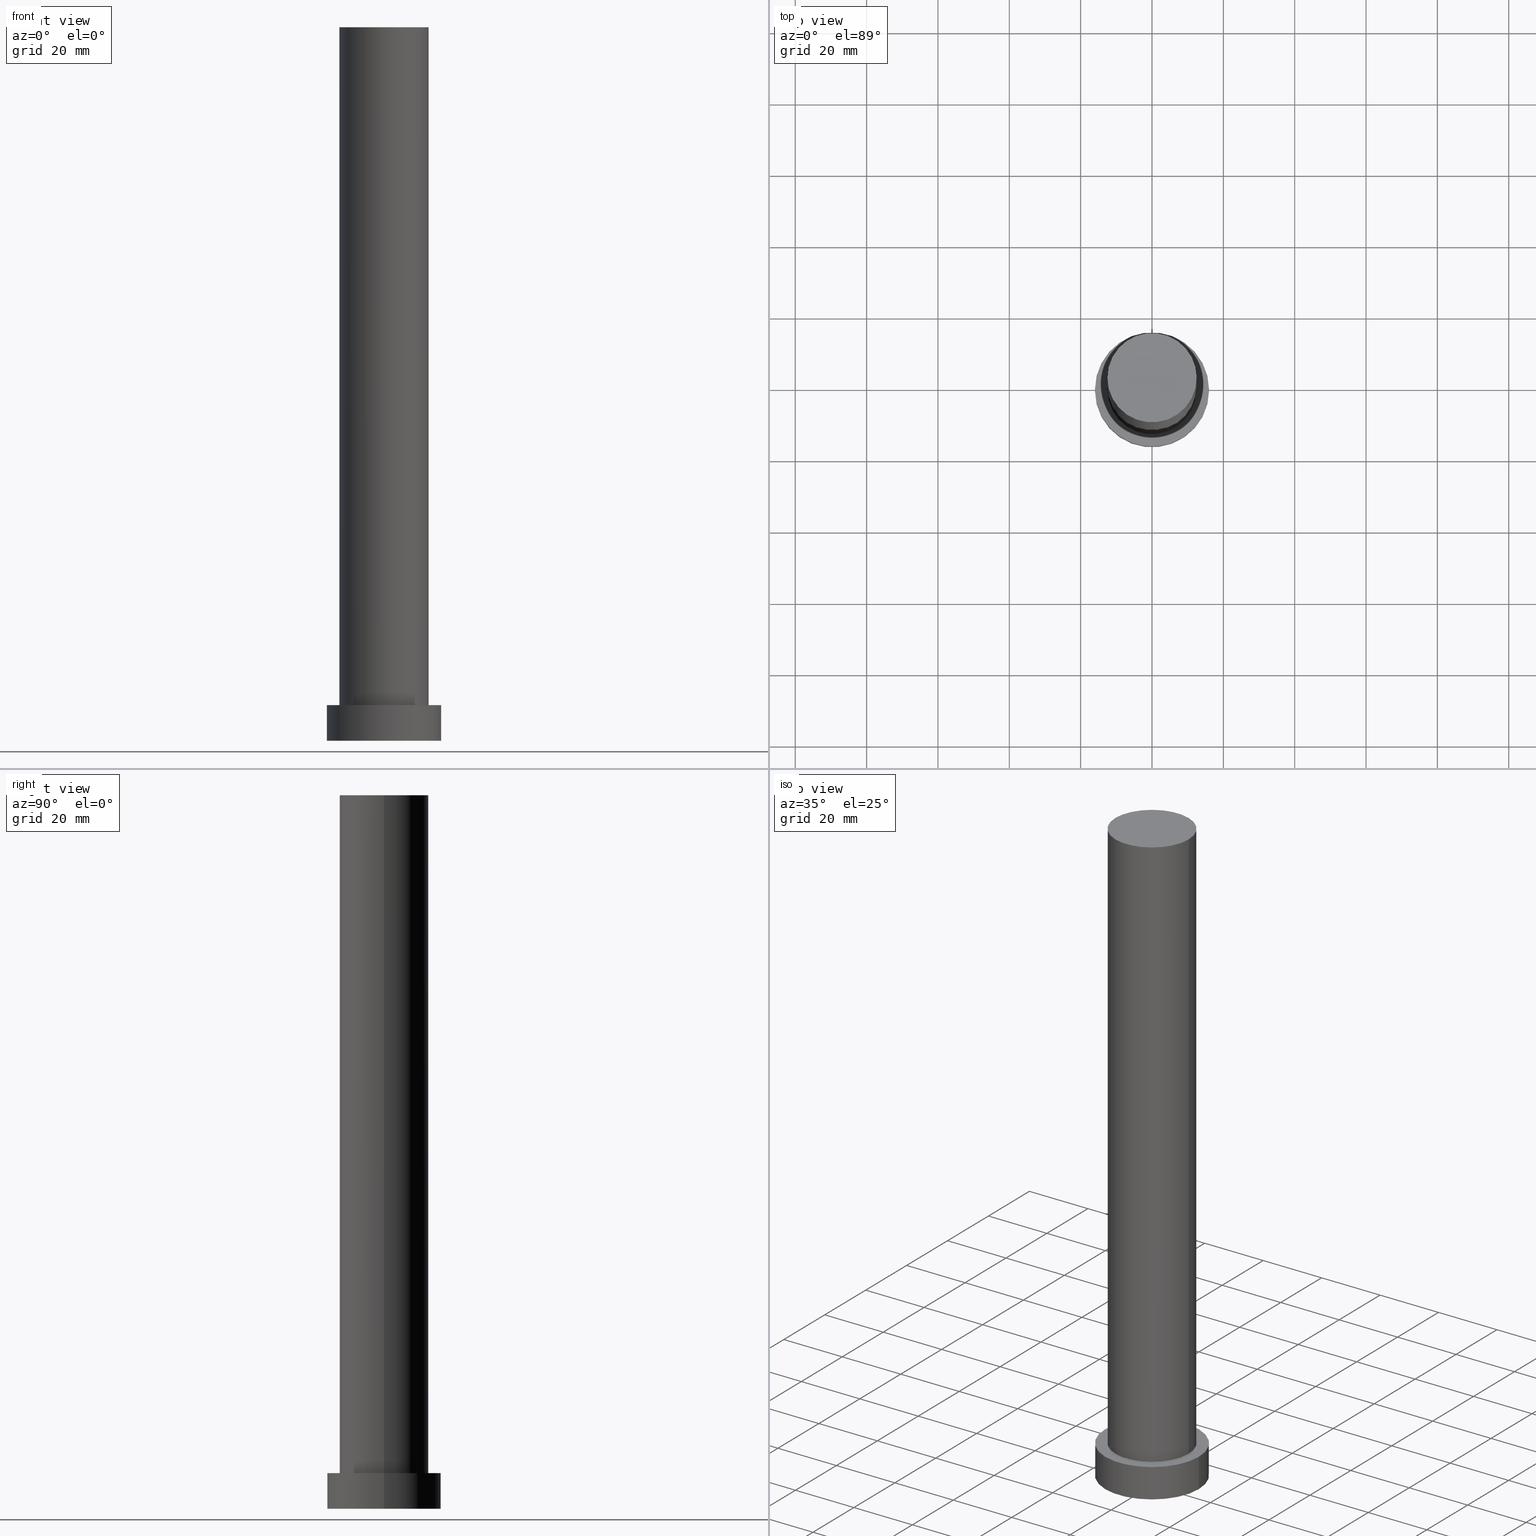
[diagram: canonical four-view strip — front | top / right | iso, engineering-drawing reading convention]
A machine part, canonical four-view strip (front | top / right | iso — engineering-drawing reading convention). The complete STEP part file that produces these views, byte-faithful:
ISO-10303-21;
HEADER;
FILE_DESCRIPTION (( 'STEP AP203' ),
    '1' );
FILE_NAME ('477f.STEP',
    '2023-02-13T07:52:15',
    ( '' ),
    ( '' ),
    'SwSTEP 2.0',
    'SolidWorks 2019',
    '' );
FILE_SCHEMA (( 'CONFIG_CONTROL_DESIGN' ));
ENDSEC;

DATA;
#1 = PERSON_AND_ORGANIZATION ( #253, #13 ) ;
#2 = DIRECTION ( 'NONE',  ( -1.000000000000000000, 0.000000000000000000, 0.000000000000000000 ) ) ;
#3 = APPROVAL_ROLE ( '' ) ;
#4 = DIRECTION ( 'NONE',  ( -0.000000000000000000, -0.000000000000000000, -1.000000000000000000 ) ) ;
#5 = PERSON_AND_ORGANIZATION_ROLE ( 'creator' ) ;
#6 = ORIENTED_EDGE ( 'NONE', *, *, #17, .T. ) ;
#7 = PERSON_AND_ORGANIZATION_ROLE ( 'design_supplier' ) ;
#8 = CARTESIAN_POINT ( 'NONE',  ( 0.000000000000000000, 0.000000000000000000, 10.00000000000000000 ) ) ;
#9 = CYLINDRICAL_SURFACE ( 'NONE', #255, 16.00000000000000000 ) ;
#10 = PRODUCT_DEFINITION_FORMATION_WITH_SPECIFIED_SOURCE ( 'LIBOVOLN�', '', #134, .NOT_KNOWN. ) ;
#11 = CARTESIAN_POINT ( 'NONE',  ( 12.50000000000000000, 1.530808498934191521E-15, 200.0000000000000000 ) ) ;
#12 = CIRCLE ( 'NONE', #185, 12.50000000000000000 ) ;
#13 = ORGANIZATION ( 'NEUR�EN�', 'NEUR�EN�', '' ) ;
#14 = UNCERTAINTY_MEASURE_WITH_UNIT (LENGTH_MEASURE( 1.000000000000000082E-05 ), #113, 'distance_accuracy_value', 'NONE');
#15 = EDGE_CURVE ( 'NONE', #167, #133, #119, .T. ) ;
#16 = APPROVAL_DATE_TIME ( #34, #140 ) ;
#17 = EDGE_CURVE ( 'NONE', #64, #164, #74, .T. ) ;
#18 = DIRECTION ( 'NONE',  ( 0.000000000000000000, 0.000000000000000000, 1.000000000000000000 ) ) ;
#19 = CARTESIAN_POINT ( 'NONE',  ( 16.00000000000000000, 1.959434878635765131E-15, 0.000000000000000000 ) ) ;
#20 = ORIENTED_EDGE ( 'NONE', *, *, #17, .F. ) ;
#21 =( NAMED_UNIT ( * ) SI_UNIT ( $, .STERADIAN. ) SOLID_ANGLE_UNIT ( ) );
#22 = ORIENTED_EDGE ( 'NONE', *, *, #83, .F. ) ;
#23 = AXIS2_PLACEMENT_3D ( 'NONE', #44, #115, #247 ) ;
#24 = FACE_OUTER_BOUND ( 'NONE', #27, .T. ) ;
#25 = DIRECTION ( 'NONE',  ( 0.000000000000000000, 0.000000000000000000, 1.000000000000000000 ) ) ;
#26 = DATE_AND_TIME ( #226, #39 ) ;
#27 = EDGE_LOOP ( 'NONE', ( #179, #35, #6, #107 ) ) ;
#28 = PLANE ( 'NONE',  #69 ) ;
#29 = PERSON_AND_ORGANIZATION_ROLE ( 'classification_officer' ) ;
#30 = EDGE_CURVE ( 'NONE', #123, #64, #12, .T. ) ;
#31 = SHAPE_DEFINITION_REPRESENTATION ( #77, #231 ) ;
#32 = DATE_TIME_ROLE ( 'creation_date' ) ;
#33 = COORDINATED_UNIVERSAL_TIME_OFFSET ( 1, 0, .AHEAD. ) ;
#34 = DATE_AND_TIME ( #143, #218 ) ;
#35 = ORIENTED_EDGE ( 'NONE', *, *, #142, .F. ) ;
#36 = DATE_TIME_ROLE ( 'classification_date' ) ;
#37 = CARTESIAN_POINT ( 'NONE',  ( 0.000000000000000000, 0.000000000000000000, 10.00000000000000000 ) ) ;
#38 = CIRCLE ( 'NONE', #51, 12.50000000000000000 ) ;
#39 = LOCAL_TIME ( 8, 52, 15.00000000000000000, #230 ) ;
#40 = EDGE_LOOP ( 'NONE', ( #205, #153, #92, #129 ) ) ;
#41 = ADVANCED_FACE ( 'NONE', ( #112, #201 ), #28, .T. ) ;
#42 = CARTESIAN_POINT ( 'NONE',  ( 0.000000000000000000, 0.000000000000000000, 10.00000000000000000 ) ) ;
#43 = ORIENTED_EDGE ( 'NONE', *, *, #15, .F. ) ;
#44 = CARTESIAN_POINT ( 'NONE',  ( 0.000000000000000000, 0.000000000000000000, 200.0000000000000000 ) ) ;
#45 = DIRECTION ( 'NONE',  ( -0.000000000000000000, -0.000000000000000000, -1.000000000000000000 ) ) ;
#46 = AXIS2_PLACEMENT_3D ( 'NONE', #42, #18, #149 ) ;
#47 = DIRECTION ( 'NONE',  ( -0.000000000000000000, -0.000000000000000000, -1.000000000000000000 ) ) ;
#48 = DIRECTION ( 'NONE',  ( -1.000000000000000000, 0.000000000000000000, 0.000000000000000000 ) ) ;
#49 = CC_DESIGN_PERSON_AND_ORGANIZATION_ASSIGNMENT ( #180, #7, ( #10 ) ) ;
#50 = CARTESIAN_POINT ( 'NONE',  ( 0.000000000000000000, 0.000000000000000000, 200.0000000000000000 ) ) ;
#51 = AXIS2_PLACEMENT_3D ( 'NONE', #8, #101, #182 ) ;
#52 = CARTESIAN_POINT ( 'NONE',  ( 0.000000000000000000, 0.000000000000000000, 200.0000000000000000 ) ) ;
#53 = APPROVAL_PERSON_ORGANIZATION ( #217, #140, #212 ) ;
#54 = DATE_AND_TIME ( #127, #233 ) ;
#55 = COORDINATED_UNIVERSAL_TIME_OFFSET ( 1, 0, .AHEAD. ) ;
#56 = AXIS2_PLACEMENT_3D ( 'NONE', #227, #199, #136 ) ;
#57 = ADVANCED_FACE ( 'NONE', ( #138 ), #9, .T. ) ;
#58 = CARTESIAN_POINT ( 'NONE',  ( 16.00000000000000000, 1.959434878635765131E-15, 10.00000000000000000 ) ) ;
#59 = DIRECTION ( 'NONE',  ( 1.000000000000000000, 0.000000000000000000, 0.000000000000000000 ) ) ;
#60 = MECHANICAL_CONTEXT ( 'NONE', #203, 'mechanical' ) ;
#61 = CARTESIAN_POINT ( 'NONE',  ( 0.000000000000000000, 0.000000000000000000, 10.00000000000000000 ) ) ;
#62 = ORIENTED_EDGE ( 'NONE', *, *, #191, .F. ) ;
#63 = DIRECTION ( 'NONE',  ( 0.000000000000000000, 0.000000000000000000, 1.000000000000000000 ) ) ;
#64 = VERTEX_POINT ( 'NONE', #238 ) ;
#65 = CARTESIAN_POINT ( 'NONE',  ( -16.00000000000000000, 0.000000000000000000, 10.00000000000000000 ) ) ;
#66 = AXIS2_PLACEMENT_3D ( 'NONE', #195, #204, #168 ) ;
#67 = DATE_AND_TIME ( #210, #96 ) ;
#68 = AXIS2_PLACEMENT_3D ( 'NONE', #155, #71, #90 ) ;
#69 = AXIS2_PLACEMENT_3D ( 'NONE', #100, #25, #98 ) ;
#70 = AXIS2_PLACEMENT_3D ( 'NONE', #172, #4, #2 ) ;
#71 = DIRECTION ( 'NONE',  ( 0.000000000000000000, 0.000000000000000000, 1.000000000000000000 ) ) ;
#72 = FACE_OUTER_BOUND ( 'NONE', #171, .T. ) ;
#73 = MANIFOLD_SOLID_BREP ( 'P�idat vysunut�m3', #159 ) ;
#74 = LINE ( 'NONE', #156, #81 ) ;
#75 = PLANE ( 'NONE',  #23 ) ;
#76 = CARTESIAN_POINT ( 'NONE',  ( 0.000000000000000000, 0.000000000000000000, 0.000000000000000000 ) ) ;
#77 = PRODUCT_DEFINITION_SHAPE ( 'NONE', 'NONE',  #251 ) ;
#78 = ORIENTED_EDGE ( 'NONE', *, *, #191, .T. ) ;
#79 = APPROVAL_PERSON_ORGANIZATION ( #1, #202, #3 ) ;
#80 = CYLINDRICAL_SURFACE ( 'NONE', #70, 12.50000000000000000 ) ;
#81 = VECTOR ( 'NONE', #45, 1000.000000000000000 ) ;
#82 = AXIS2_PLACEMENT_3D ( 'NONE', #76, #173, #59 ) ;
#83 = EDGE_CURVE ( 'NONE', #164, #145, #105, .T. ) ;
#84 = CIRCLE ( 'NONE', #141, 16.00000000000000000 ) ;
#85 = ORIENTED_EDGE ( 'NONE', *, *, #154, .T. ) ;
#86 = EDGE_LOOP ( 'NONE', ( #222, #214 ) ) ;
#87 = DIRECTION ( 'NONE',  ( -0.000000000000000000, -0.000000000000000000, -1.000000000000000000 ) ) ;
#88 = AXIS2_PLACEMENT_3D ( 'NONE', #37, #47, #237 ) ;
#89 = PLANE ( 'NONE',  #207 ) ;
#90 = DIRECTION ( 'NONE',  ( 1.000000000000000000, 0.000000000000000000, 0.000000000000000000 ) ) ;
#91 = PERSON_AND_ORGANIZATION_ROLE ( 'design_owner' ) ;
#92 = ORIENTED_EDGE ( 'NONE', *, *, #236, .T. ) ;
#93 = APPLICATION_PROTOCOL_DEFINITION ( 'international standard', 'config_control_design', 1994, #203 ) ;
#94 = ORIENTED_EDGE ( 'NONE', *, *, #170, .F. ) ;
#95 = CARTESIAN_POINT ( 'NONE',  ( 16.00000000000000000, 1.959434878635765131E-15, 10.00000000000000000 ) ) ;
#96 = LOCAL_TIME ( 8, 52, 15.00000000000000000, #188 ) ;
#97 = CYLINDRICAL_SURFACE ( 'NONE', #88, 16.00000000000000000 ) ;
#98 = DIRECTION ( 'NONE',  ( 1.000000000000000000, 0.000000000000000000, -0.000000000000000000 ) ) ;
#99 = EDGE_CURVE ( 'NONE', #114, #167, #110, .T. ) ;
#100 = CARTESIAN_POINT ( 'NONE',  ( 0.000000000000000000, 0.000000000000000000, 10.00000000000000000 ) ) ;
#101 = DIRECTION ( 'NONE',  ( 0.000000000000000000, 0.000000000000000000, 1.000000000000000000 ) ) ;
#102 = ADVANCED_FACE ( 'NONE', ( #165 ), #89, .F. ) ;
#103 = CALENDAR_DATE ( 2023, 13, 2 ) ;
#104 = CC_DESIGN_DATE_AND_TIME_ASSIGNMENT ( #54, #32, ( #251 ) ) ;
#105 = CIRCLE ( 'NONE', #240, 12.50000000000000000 ) ;
#106 = APPROVAL_STATUS ( 'not_yet_approved' ) ;
#107 = ORIENTED_EDGE ( 'NONE', *, *, #83, .T. ) ;
#108 = APPLICATION_CONTEXT ( 'configuration controlled 3d designs of mechanical parts and assemblies' ) ;
#109 = EDGE_CURVE ( 'NONE', #123, #145, #245, .T. ) ;
#110 = LINE ( 'NONE', #58, #249 ) ;
#111 = CARTESIAN_POINT ( 'NONE',  ( -16.00000000000000000, 0.000000000000000000, 10.00000000000000000 ) ) ;
#112 = FACE_BOUND ( 'NONE', #174, .T. ) ;
#113 =( LENGTH_UNIT ( ) NAMED_UNIT ( * ) SI_UNIT ( .MILLI., .METRE. ) );
#114 = VERTEX_POINT ( 'NONE', #95 ) ;
#115 = DIRECTION ( 'NONE',  ( 0.000000000000000000, 0.000000000000000000, 1.000000000000000000 ) ) ;
#116 = CARTESIAN_POINT ( 'NONE',  ( -12.50000000000000000, 0.000000000000000000, 10.00000000000000000 ) ) ;
#117 = EDGE_CURVE ( 'NONE', #145, #164, #38, .T. ) ;
#118 = DIRECTION ( 'NONE',  ( 1.000000000000000000, 0.000000000000000000, 0.000000000000000000 ) ) ;
#119 = CIRCLE ( 'NONE', #56, 16.00000000000000000 ) ;
#120 = DIRECTION ( 'NONE',  ( 1.000000000000000000, 0.000000000000000000, -0.000000000000000000 ) ) ;
#121 = CIRCLE ( 'NONE', #68, 16.00000000000000000 ) ;
#122 = AXIS2_PLACEMENT_3D ( 'NONE', #52, #125, #160 ) ;
#123 = VERTEX_POINT ( 'NONE', #11 ) ;
#124 = SECURITY_CLASSIFICATION ( '', '', #158 ) ;
#125 = DIRECTION ( 'NONE',  ( 0.000000000000000000, 0.000000000000000000, 1.000000000000000000 ) ) ;
#126 = PERSON_AND_ORGANIZATION ( #253, #13 ) ;
#127 = CALENDAR_DATE ( 2023, 13, 2 ) ;
#128 = ADVANCED_FACE ( 'NONE', ( #72 ), #80, .T. ) ;
#129 = ORIENTED_EDGE ( 'NONE', *, *, #170, .T. ) ;
#130 =( NAMED_UNIT ( * ) PLANE_ANGLE_UNIT ( ) SI_UNIT ( $, .RADIAN. ) );
#131 = DIRECTION ( 'NONE',  ( 0.000000000000000000, 0.000000000000000000, 1.000000000000000000 ) ) ;
#132 = APPLICATION_PROTOCOL_DEFINITION ( 'international standard', 'config_control_design', 1994, #108 ) ;
#133 = VERTEX_POINT ( 'NONE', #242 ) ;
#134 = PRODUCT ( '477f', '477f', '', ( #60 ) ) ;
#135 = CARTESIAN_POINT ( 'NONE',  ( 0.000000000000000000, 0.000000000000000000, 0.000000000000000000 ) ) ;
#136 = DIRECTION ( 'NONE',  ( 1.000000000000000000, 0.000000000000000000, 0.000000000000000000 ) ) ;
#137 = DIRECTION ( 'NONE',  ( -0.000000000000000000, -0.000000000000000000, -1.000000000000000000 ) ) ;
#138 = FACE_OUTER_BOUND ( 'NONE', #40, .T. ) ;
#139 = ADVANCED_FACE ( 'NONE', ( #175 ), #75, .T. ) ;
#140 = APPROVAL ( #163, 'NEUR�EN�' ) ;
#141 = AXIS2_PLACEMENT_3D ( 'NONE', #135, #200, #221 ) ;
#142 = EDGE_CURVE ( 'NONE', #64, #123, #235, .T. ) ;
#143 = CALENDAR_DATE ( 2023, 13, 2 ) ;
#144 = CIRCLE ( 'NONE', #46, 16.00000000000000000 ) ;
#145 = VERTEX_POINT ( 'NONE', #209 ) ;
#146 = CC_DESIGN_PERSON_AND_ORGANIZATION_ASSIGNMENT ( #228, #29, ( #124 ) ) ;
#147 = CC_DESIGN_PERSON_AND_ORGANIZATION_ASSIGNMENT ( #184, #5, ( #251 ) ) ;
#148 = VERTEX_POINT ( 'NONE', #111 ) ;
#149 = DIRECTION ( 'NONE',  ( 1.000000000000000000, 0.000000000000000000, 0.000000000000000000 ) ) ;
#150 = DIRECTION ( 'NONE',  ( -0.000000000000000000, -0.000000000000000000, -1.000000000000000000 ) ) ;
#151 = PERSON_AND_ORGANIZATION_ROLE ( 'creator' ) ;
#152 = APPROVAL_STATUS ( 'not_yet_approved' ) ;
#153 = ORIENTED_EDGE ( 'NONE', *, *, #154, .F. ) ;
#154 = EDGE_CURVE ( 'NONE', #148, #114, #121, .T. ) ;
#155 = CARTESIAN_POINT ( 'NONE',  ( 0.000000000000000000, 0.000000000000000000, 10.00000000000000000 ) ) ;
#156 = CARTESIAN_POINT ( 'NONE',  ( -12.50000000000000000, 0.000000000000000000, 200.0000000000000000 ) ) ;
#157 = ORIENTED_EDGE ( 'NONE', *, *, #117, .F. ) ;
#158 = SECURITY_CLASSIFICATION_LEVEL ( 'unclassified' ) ;
#159 = CLOSED_SHELL ( 'NONE', ( #128, #161, #57, #41, #102, #187, #139 ) ) ;
#160 = DIRECTION ( 'NONE',  ( 1.000000000000000000, 0.000000000000000000, 0.000000000000000000 ) ) ;
#161 = ADVANCED_FACE ( 'NONE', ( #243 ), #97, .T. ) ;
#162 = LOCAL_TIME ( 8, 52, 15.00000000000000000, #33 ) ;
#163 = APPROVAL_STATUS ( 'not_yet_approved' ) ;
#164 = VERTEX_POINT ( 'NONE', #116 ) ;
#165 = FACE_OUTER_BOUND ( 'NONE', #189, .T. ) ;
#166 = VECTOR ( 'NONE', #229, 1000.000000000000000 ) ;
#167 = VERTEX_POINT ( 'NONE', #19 ) ;
#168 = DIRECTION ( 'NONE',  ( -1.000000000000000000, 0.000000000000000000, 0.000000000000000000 ) ) ;
#169 = DIRECTION ( 'NONE',  ( 1.000000000000000000, 0.000000000000000000, 0.000000000000000000 ) ) ;
#170 = EDGE_CURVE ( 'NONE', #133, #167, #84, .T. ) ;
#171 = EDGE_LOOP ( 'NONE', ( #197, #241, #220, #20 ) ) ;
#172 = CARTESIAN_POINT ( 'NONE',  ( 0.000000000000000000, 0.000000000000000000, 200.0000000000000000 ) ) ;
#173 = DIRECTION ( 'NONE',  ( 0.000000000000000000, 0.000000000000000000, 1.000000000000000000 ) ) ;
#174 = EDGE_LOOP ( 'NONE', ( #22, #157 ) ) ;
#175 = FACE_OUTER_BOUND ( 'NONE', #86, .T. ) ;
#176 = CYLINDRICAL_SURFACE ( 'NONE', #66, 12.50000000000000000 ) ;
#177 = ORIENTED_EDGE ( 'NONE', *, *, #15, .T. ) ;
#178 = CC_DESIGN_PERSON_AND_ORGANIZATION_ASSIGNMENT ( #254, #151, ( #10 ) ) ;
#179 = ORIENTED_EDGE ( 'NONE', *, *, #109, .F. ) ;
#180 = PERSON_AND_ORGANIZATION ( #253, #13 ) ;
#181 = CC_DESIGN_APPROVAL ( #140, ( #124 ) ) ;
#182 = DIRECTION ( 'NONE',  ( 1.000000000000000000, 0.000000000000000000, 0.000000000000000000 ) ) ;
#183 = APPROVAL_PERSON_ORGANIZATION ( #126, #232, #213 ) ;
#184 = PERSON_AND_ORGANIZATION ( #253, #13 ) ;
#185 = AXIS2_PLACEMENT_3D ( 'NONE', #50, #206, #118 ) ;
#186 = DESIGN_CONTEXT ( 'detailed design', #108, 'design' ) ;
#187 = ADVANCED_FACE ( 'NONE', ( #24 ), #176, .T. ) ;
#188 = COORDINATED_UNIVERSAL_TIME_OFFSET ( 1, 0, .AHEAD. ) ;
#189 = EDGE_LOOP ( 'NONE', ( #94, #43 ) ) ;
#190 = ORIENTED_EDGE ( 'NONE', *, *, #99, .T. ) ;
#191 = EDGE_CURVE ( 'NONE', #114, #148, #144, .T. ) ;
#192 = EDGE_LOOP ( 'NONE', ( #85, #78 ) ) ;
#193 = APPROVAL_DATE_TIME ( #216, #232 ) ;
#194 = PRODUCT_RELATED_PRODUCT_CATEGORY ( 'detail', '', ( #134 ) ) ;
#195 = CARTESIAN_POINT ( 'NONE',  ( 0.000000000000000000, 0.000000000000000000, 200.0000000000000000 ) ) ;
#196 =( GEOMETRIC_REPRESENTATION_CONTEXT ( 3 ) GLOBAL_UNCERTAINTY_ASSIGNED_CONTEXT ( ( #14 ) ) GLOBAL_UNIT_ASSIGNED_CONTEXT ( ( #113, #130, #21 ) ) REPRESENTATION_CONTEXT ( 'NONE', 'WORKASPACE' ) );
#197 = ORIENTED_EDGE ( 'NONE', *, *, #30, .F. ) ;
#198 = CARTESIAN_POINT ( 'NONE',  ( 12.50000000000000000, 1.530808498934191521E-15, 200.0000000000000000 ) ) ;
#199 = DIRECTION ( 'NONE',  ( 0.000000000000000000, 0.000000000000000000, 1.000000000000000000 ) ) ;
#200 = DIRECTION ( 'NONE',  ( 0.000000000000000000, 0.000000000000000000, 1.000000000000000000 ) ) ;
#201 = FACE_OUTER_BOUND ( 'NONE', #192, .T. ) ;
#202 = APPROVAL ( #152, 'NEUR�EN�' ) ;
#203 = APPLICATION_CONTEXT ( 'configuration controlled 3d designs of mechanical parts and assemblies' ) ;
#204 = DIRECTION ( 'NONE',  ( -0.000000000000000000, -0.000000000000000000, -1.000000000000000000 ) ) ;
#205 = ORIENTED_EDGE ( 'NONE', *, *, #99, .F. ) ;
#206 = DIRECTION ( 'NONE',  ( 0.000000000000000000, 0.000000000000000000, 1.000000000000000000 ) ) ;
#207 = AXIS2_PLACEMENT_3D ( 'NONE', #219, #63, #120 ) ;
#208 = APPROVAL_DATE_TIME ( #26, #202 ) ;
#209 = CARTESIAN_POINT ( 'NONE',  ( 12.50000000000000000, 1.530808498934191521E-15, 10.00000000000000000 ) ) ;
#210 = CALENDAR_DATE ( 2023, 13, 2 ) ;
#211 = CC_DESIGN_DATE_AND_TIME_ASSIGNMENT ( #67, #36, ( #124 ) ) ;
#212 = APPROVAL_ROLE ( '' ) ;
#213 = APPROVAL_ROLE ( '' ) ;
#214 = ORIENTED_EDGE ( 'NONE', *, *, #30, .T. ) ;
#215 = VECTOR ( 'NONE', #137, 1000.000000000000000 ) ;
#216 = DATE_AND_TIME ( #103, #162 ) ;
#217 = PERSON_AND_ORGANIZATION ( #253, #13 ) ;
#218 = LOCAL_TIME ( 8, 52, 15.00000000000000000, #252 ) ;
#219 = CARTESIAN_POINT ( 'NONE',  ( 0.000000000000000000, 0.000000000000000000, 0.000000000000000000 ) ) ;
#220 = ORIENTED_EDGE ( 'NONE', *, *, #117, .T. ) ;
#221 = DIRECTION ( 'NONE',  ( 1.000000000000000000, 0.000000000000000000, 0.000000000000000000 ) ) ;
#222 = ORIENTED_EDGE ( 'NONE', *, *, #142, .T. ) ;
#223 = LINE ( 'NONE', #65, #215 ) ;
#224 = CC_DESIGN_PERSON_AND_ORGANIZATION_ASSIGNMENT ( #234, #91, ( #134 ) ) ;
#225 = CARTESIAN_POINT ( 'NONE',  ( 0.000000000000000000, 0.000000000000000000, 10.00000000000000000 ) ) ;
#226 = CALENDAR_DATE ( 2023, 13, 2 ) ;
#227 = CARTESIAN_POINT ( 'NONE',  ( 0.000000000000000000, 0.000000000000000000, 0.000000000000000000 ) ) ;
#228 = PERSON_AND_ORGANIZATION ( #253, #13 ) ;
#229 = DIRECTION ( 'NONE',  ( -0.000000000000000000, -0.000000000000000000, -1.000000000000000000 ) ) ;
#230 = COORDINATED_UNIVERSAL_TIME_OFFSET ( 1, 0, .AHEAD. ) ;
#231 = ADVANCED_BREP_SHAPE_REPRESENTATION ( '477f', ( #73, #82 ), #196 ) ;
#232 = APPROVAL ( #106, 'NEUR�EN�' ) ;
#233 = LOCAL_TIME ( 8, 52, 15.00000000000000000, #55 ) ;
#234 = PERSON_AND_ORGANIZATION ( #253, #13 ) ;
#235 = CIRCLE ( 'NONE', #122, 12.50000000000000000 ) ;
#236 = EDGE_CURVE ( 'NONE', #148, #133, #223, .T. ) ;
#237 = DIRECTION ( 'NONE',  ( -1.000000000000000000, 0.000000000000000000, 0.000000000000000000 ) ) ;
#238 = CARTESIAN_POINT ( 'NONE',  ( -12.50000000000000000, 0.000000000000000000, 200.0000000000000000 ) ) ;
#239 = CC_DESIGN_APPROVAL ( #232, ( #10 ) ) ;
#240 = AXIS2_PLACEMENT_3D ( 'NONE', #61, #131, #169 ) ;
#241 = ORIENTED_EDGE ( 'NONE', *, *, #109, .T. ) ;
#242 = CARTESIAN_POINT ( 'NONE',  ( -16.00000000000000000, 0.000000000000000000, 0.000000000000000000 ) ) ;
#243 = FACE_OUTER_BOUND ( 'NONE', #244, .T. ) ;
#244 = EDGE_LOOP ( 'NONE', ( #62, #190, #177, #246 ) ) ;
#245 = LINE ( 'NONE', #198, #166 ) ;
#246 = ORIENTED_EDGE ( 'NONE', *, *, #236, .F. ) ;
#247 = DIRECTION ( 'NONE',  ( 1.000000000000000000, 0.000000000000000000, -0.000000000000000000 ) ) ;
#248 = CC_DESIGN_SECURITY_CLASSIFICATION ( #124, ( #10 ) ) ;
#249 = VECTOR ( 'NONE', #87, 1000.000000000000000 ) ;
#250 = CC_DESIGN_APPROVAL ( #202, ( #251 ) ) ;
#251 = PRODUCT_DEFINITION ( 'NEZN�M�', '', #10, #186 ) ;
#252 = COORDINATED_UNIVERSAL_TIME_OFFSET ( 1, 0, .AHEAD. ) ;
#253 = PERSON ( 'NEUR�EN�', 'NEUR�EN�', 'NEUR�EN�', ('NEUR�EN�'), ('NEUR�EN�'), ('NEUR�EN�') ) ;
#254 = PERSON_AND_ORGANIZATION ( #253, #13 ) ;
#255 = AXIS2_PLACEMENT_3D ( 'NONE', #225, #150, #48 ) ;
ENDSEC;
END-ISO-10303-21;
